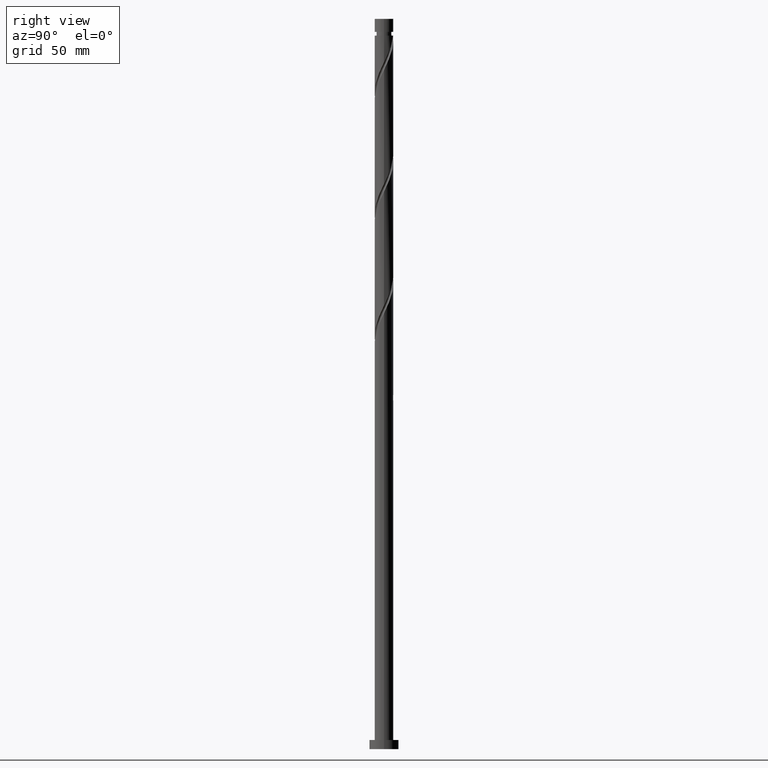
[diagram: clean part render]
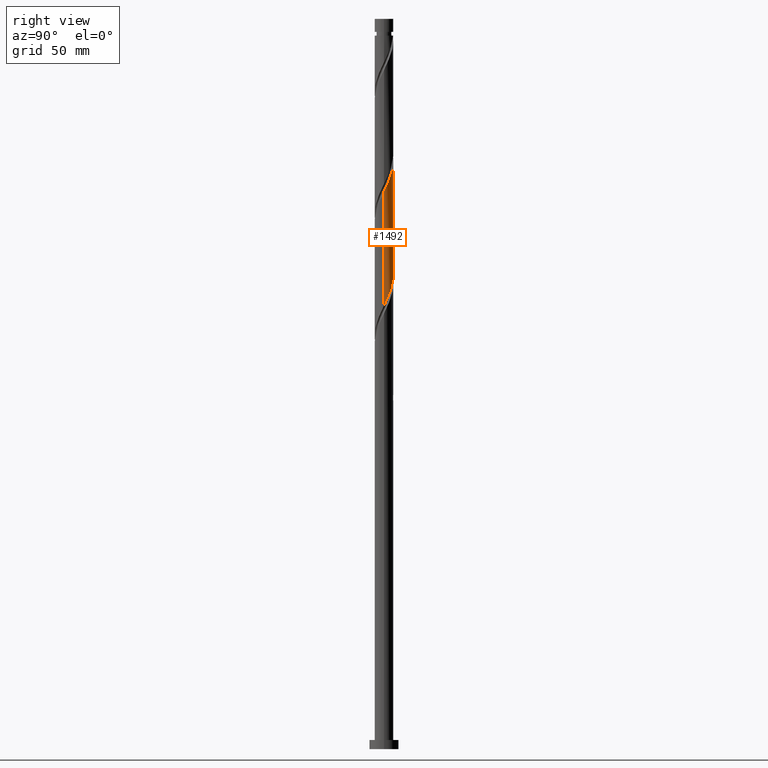
[diagram: same view with one face highlighted and labeled with its STEP entity id]
A machine part, right view. The second image highlights one B-rep face of the part: STEP entity #1492.
In plain terms, the highlighted cylindrical surface (edge-blend (fillet) strip) has radius 5.1 mm, axis along (-0, -0, -1).
Its self-contained STEP definition (entity closure, byte-faithful):
#24 = CARTESIAN_POINT ( 'NONE',  ( 4.703541288989204538, 2.043044105940176713, 309.7353195705192093 ) ) ;
#88 = CARTESIAN_POINT ( 'NONE',  ( -1.629005779183733349, 4.862475711757237917, 263.0686529038525237 ) ) ;
#108 = CARTESIAN_POINT ( 'NONE',  ( -4.864535835123824370, 1.531760787067010465, 273.0686529038525237 ) ) ;
#117 = CARTESIAN_POINT ( 'NONE',  ( -0.5824425476983379202, 5.094908296983734708, 260.8464306816302951 ) ) ;
#131 = CARTESIAN_POINT ( 'NONE',  ( -5.006116031791211007, 1.111814801253407703, 336.4019862371858949 ) ) ;
#154 = CARTESIAN_POINT ( 'NONE',  ( 3.465917878084602055, 3.779516257197030438, 314.1797640149634958 ) ) ;
#227 = FACE_OUTER_BOUND ( 'NONE', #809, .T. ) ;
#252 = ORIENTED_EDGE ( 'NONE', *, *, #808, .F. ) ;
#254 = CARTESIAN_POINT ( 'NONE',  ( 3.396524602074721511, 3.841998243563393700, 251.9575417927413525 ) ) ;
#273 = CARTESIAN_POINT ( 'NONE',  ( -5.100000000000005862, 0.2905660609768112579, 338.1153961287241145 ) ) ;
#281 = CARTESIAN_POINT ( 'NONE',  ( 5.099999999999997868, 0.2905660609768141445, 243.5774652345363620 ) ) ;
#304 = CARTESIAN_POINT ( 'NONE',  ( 5.076705030977439748, 0.4868942682435418723, 306.4019862371858380 ) ) ;
#324 = CARTESIAN_POINT ( 'NONE',  ( 2.116689710232775745, 4.640002658468502794, 317.5130973482969239 ) ) ;
#349 = LINE ( 'NONE', #1322, #1494 ) ;
#396 = CARTESIAN_POINT ( 'NONE',  ( -4.665561090286806767, 2.128349028905955009, 334.1797640149636663 ) ) ;
#407 = CARTESIAN_POINT ( 'NONE',  ( 5.006116031791203902, 1.111814801253401708, 245.2908751260747238 ) ) ;
#418 = CARTESIAN_POINT ( 'NONE',  ( 2.960015320744664447, 4.153108390224947044, 253.0686529038524384 ) ) ;
#431 = DIRECTION ( 'NONE',  ( -0.000000000000000000, -0.000000000000000000, -1.000000000000000000 ) ) ;
#461 = LINE ( 'NONE', #1080, #777 ) ;
#473 = CARTESIAN_POINT ( 'NONE',  ( 5.100000000000005862, 0.2440043963624370094, 305.8962026303395305 ) ) ;
#521 = CARTESIAN_POINT ( 'NONE',  ( -1.540198153706608508, 4.891331058450437475, 325.2908751260745817 ) ) ;
#546 = EDGE_CURVE ( 'NONE', #1191, #640, #349, .T. ) ;
#548 = CARTESIAN_POINT ( 'NONE',  ( -4.393329915788834583, 2.590106609974759611, 333.0686529038525237 ) ) ;
#557 = CARTESIAN_POINT ( 'NONE',  ( -5.100000000000000533, 0.2440043963624132228, 275.7966587329210597 ) ) ;
#579 = CARTESIAN_POINT ( 'NONE',  ( 1.014887185848757145, 4.997999999999998444, 257.5130973482969807 ) ) ;
#589 = CARTESIAN_POINT ( 'NONE',  ( -3.035145759683201661, 4.098522931188388618, 266.4019862371857243 ) ) ;
#613 = CARTESIAN_POINT ( 'NONE',  ( 4.439763080642553206, 2.509682009291898996, 310.8464306816301814 ) ) ;
#623 = CARTESIAN_POINT ( 'NONE',  ( 3.820951375190253962, 3.377918084920322972, 313.0686529038524100 ) ) ;
#634 = VERTEX_POINT ( 'NONE', #1500 ) ;
#640 = VERTEX_POINT ( 'NONE', #1029 ) ;
#647 = CARTESIAN_POINT ( 'NONE',  ( 0.5824425476983405847, 5.094908296983741813, 320.8464306816300677 ) ) ;
#681 = CARTESIAN_POINT ( 'NONE',  ( 0.04643316485371995483, 5.099788619266659495, 321.9575417927414378 ) ) ;
#690 = DIRECTION ( 'NONE',  ( -0.000000000000000000, -0.000000000000000000, -1.000000000000000000 ) ) ;
#698 = DIRECTION ( 'NONE',  ( -0.000000000000000000, -0.000000000000000000, -1.000000000000000000 ) ) ;
#702 = EDGE_CURVE ( 'NONE', #1590, #1191, #1675, .T. ) ;
#707 = CARTESIAN_POINT ( 'NONE',  ( -5.076705030977431754, 0.4868942682435466462, 275.2908751260746385 ) ) ;
#708 = CYLINDRICAL_SURFACE ( 'NONE', #911, 5.099999999999999645 ) ;
#717 = CARTESIAN_POINT ( 'NONE',  ( 4.665561090286798773, 2.128349028905950124, 247.5130973482968955 ) ) ;
#728 = CARTESIAN_POINT ( 'NONE',  ( 4.393329915788831030, 2.590106609974752061, 248.6242084594079813 ) ) ;
#773 = CARTESIAN_POINT ( 'NONE',  ( 3.035145759683209654, 4.098522931188393059, 315.2908751260747522 ) ) ;
#777 = VECTOR ( 'NONE', #431, 1000.000000000000000 ) ;
#808 = EDGE_CURVE ( 'NONE', #640, #634, #860, .T. ) ;
#809 = EDGE_LOOP ( 'NONE', ( #1179, #865, #252, #1610 ) ) ;
#853 = CARTESIAN_POINT ( 'NONE',  ( -2.031852096560607723, 4.677774797668473816, 326.4019862371857812 ) ) ;
#860 =( BOUNDED_CURVE ( )  B_SPLINE_CURVE ( 2, ( #1367, #557, #707, #892, #108, #1518, #1046, #1951, #1169, #1795, #589, #1214, #1017, #88, #1833, #117, #1057, #1816, #579, #1203, #1644, #1824, #418, #254, #873, #1496, #728, #717, #1337, #407, #1673, #281, #1026 ),
 .UNSPECIFIED., .F., .T. ) 
 B_SPLINE_CURVE_WITH_KNOTS ( ( 3, 2, 2, 2, 2, 2, 2, 2, 2, 2, 2, 2, 2, 2, 2, 2, 3 ),
 ( 0.6795286012773112949, 0.6833333333333333481, 0.6916666666666666519, 0.6999999999999999556, 0.7083333333333333703, 0.7166666666666666741, 0.7249999999999999778, 0.7333333333333332815, 0.7416666666666666963, 0.7500000000000000000, 0.7583333333333333037, 0.7666666666666667185, 0.7750000000000000222, 0.7833333333333333259, 0.7916666666666666297, 0.8000000000000000444, 0.8045286012773112949 ),
 .UNSPECIFIED. ) 
 CURVE ( )  GEOMETRIC_REPRESENTATION_ITEM ( )  RATIONAL_B_SPLINE_CURVE ( ( 0.9066196499552257038, 0.9068171577856383170, 0.9090909090909373713, 0.9041108139711856451, 0.9090909090909373713, 0.9041108139711856451, 0.9090909090909373713, 0.9041108139711856451, 0.9090909090909373713, 0.9041108139711856451, 0.9090909090909373713, 0.9041108139711856451, 0.9090909090909373713, 0.9041108139711856451, 0.9090909090909373713, 0.9041108139711856451, 0.9090909090909373713, 0.9041108139711856451, 0.9090909090909373713, 0.9041108139711856451, 0.9090909090909373713, 0.9041108139711856451, 0.9090909090909373713, 0.9041108139711856451, 0.9090909090909373713, 0.9041108139711856451, 0.9090909090909373713, 0.9041108139711856451, 0.9090909090909373713, 0.9041108139711856451, 0.9090909090909373713, 0.9063845652764845884, 0.9066196499552257038 ) ) 
 REPRESENTATION_ITEM ( '' )  );
#865 = ORIENTED_EDGE ( 'NONE', *, *, #1638, .T. ) ;
#873 = CARTESIAN_POINT ( 'NONE',  ( 3.758811671682789068, 3.446931217303476291, 250.8464306816302098 ) ) ;
#892 = CARTESIAN_POINT ( 'NONE',  ( -5.025530381258453971, 1.020477468193841331, 274.1797640149634958 ) ) ;
#911 = AXIS2_PLACEMENT_3D ( 'NONE', #1645, #698, #1170 ) ;
#929 = CARTESIAN_POINT ( 'NONE',  ( 4.864535835123834140, 1.531760787067008689, 308.6242084594079529 ) ) ;
#949 = CARTESIAN_POINT ( 'NONE',  ( 1.629005779183738900, 4.862475711757243246, 318.6242084594081234 ) ) ;
#993 = CARTESIAN_POINT ( 'NONE',  ( -3.396524602074724175, 3.841998243563401250, 329.7353195705190956 ) ) ;
#1017 = CARTESIAN_POINT ( 'NONE',  ( -2.116689710232770860, 4.640002658468493024, 264.1797640149634958 ) ) ;
#1026 = CARTESIAN_POINT ( 'NONE',  ( 5.099999999999997868, 4.828338180874867465E-15, 242.9718739251517832 ) ) ;
#1029 = CARTESIAN_POINT ( 'NONE',  ( -5.099999999999998757, -6.861322678085339471E-15, 276.3052072584850976 ) ) ;
#1037 = CARTESIAN_POINT ( 'NONE',  ( -4.835838561039007999, 1.620081915079681245, 335.2908751260746953 ) ) ;
#1046 = CARTESIAN_POINT ( 'NONE',  ( -4.439763080642544324, 2.509682009291896332, 270.8464306816302383 ) ) ;
#1057 = CARTESIAN_POINT ( 'NONE',  ( -0.04643316485371615926, 5.099788619266650613, 259.7353195705191524 ) ) ;
#1080 = CARTESIAN_POINT ( 'NONE',  ( 5.099999999999999645, 6.245698675651499853E-16, 400.0000000000000000 ) ) ;
#1140 = CARTESIAN_POINT ( 'NONE',  ( -2.523506039414606494, 4.464218536886509270, 327.5130973482969807 ) ) ;
#1151 = CARTESIAN_POINT ( 'NONE',  ( -4.121098741290862399, 3.051864191043564656, 331.9575417927413241 ) ) ;
#1169 = CARTESIAN_POINT ( 'NONE',  ( -3.820951375190243748, 3.377918084920320307, 268.6242084594080666 ) ) ;
#1170 = DIRECTION ( 'NONE',  ( -1.000000000000000000, 0.000000000000000000, 0.000000000000000000 ) ) ;
#1179 = ORIENTED_EDGE ( 'NONE', *, *, #702, .F. ) ;
#1180 = CARTESIAN_POINT ( 'NONE',  ( -5.100000000000006750, 5.934520922004056829E-15, 338.7209874381086365 ) ) ;
#1191 = VERTEX_POINT ( 'NONE', #1996 ) ;
#1203 = CARTESIAN_POINT ( 'NONE',  ( 1.540198153706610951, 4.891331058450429481, 256.4019862371857812 ) ) ;
#1214 = CARTESIAN_POINT ( 'NONE',  ( -2.604373641281807039, 4.417529605179753460, 265.2908751260746953 ) ) ;
#1234 = CARTESIAN_POINT ( 'NONE',  ( 5.025530381258461077, 1.020477468193841331, 307.5130973482969239 ) ) ;
#1247 = CARTESIAN_POINT ( 'NONE',  ( 2.604373641281815477, 4.417529605179756125, 316.4019862371857243 ) ) ;
#1296 = CARTESIAN_POINT ( 'NONE',  ( -0.4895762179909007306, 5.104668941549574512, 323.0686529038524668 ) ) ;
#1322 = CARTESIAN_POINT ( 'NONE',  ( -5.099999999999999645, 0.000000000000000000, 400.0000000000000000 ) ) ;
#1337 = CARTESIAN_POINT ( 'NONE',  ( 4.835838561039001782, 1.620081915079673474, 246.4019862371858096 ) ) ;
#1367 = CARTESIAN_POINT ( 'NONE',  ( -5.099999999999997868, -6.861322678085339471E-15, 276.3052072584850976 ) ) ;
#1407 = CARTESIAN_POINT ( 'NONE',  ( 4.175984872295901873, 2.976319912643616394, 311.9575417927413241 ) ) ;
#1428 = CARTESIAN_POINT ( 'NONE',  ( 5.100000000000006750, 3.213909315443002512E-15, 305.3876541047753790 ) ) ;
#1467 = CARTESIAN_POINT ( 'NONE',  ( -2.960015320744665335, 4.153108390224957702, 328.6242084594080666 ) ) ;
#1492 = ADVANCED_FACE ( 'NONE', ( #227 ), #708, .T. ) ;
#1494 = VECTOR ( 'NONE', #690, 1000.000000000000000 ) ;
#1496 = CARTESIAN_POINT ( 'NONE',  ( 4.121098741290859735, 3.051864191043555330, 249.7353195705191524 ) ) ;
#1500 = CARTESIAN_POINT ( 'NONE',  ( 5.099999999999998757, 4.828338180874868254E-15, 242.9718739251517832 ) ) ;
#1518 = CARTESIAN_POINT ( 'NONE',  ( -4.703541288989194769, 2.043044105940178934, 271.9575417927413241 ) ) ;
#1571 = CARTESIAN_POINT ( 'NONE',  ( 1.105724163441041963, 4.978692004370492086, 319.7353195705191524 ) ) ;
#1590 = VERTEX_POINT ( 'NONE', #1805 ) ;
#1610 = ORIENTED_EDGE ( 'NONE', *, *, #546, .F. ) ;
#1636 = CARTESIAN_POINT ( 'NONE',  ( -1.014887185848755369, 4.998000000000005549, 324.1797640149636663 ) ) ;
#1638 = EDGE_CURVE ( 'NONE', #1590, #634, #461, .T. ) ;
#1644 = CARTESIAN_POINT ( 'NONE',  ( 2.031852096560608167, 4.677774797668464046, 255.2908751260747238 ) ) ;
#1645 = CARTESIAN_POINT ( 'NONE',  ( 0.000000000000000000, 0.000000000000000000, 400.0000000000000000 ) ) ;
#1673 = CARTESIAN_POINT ( 'NONE',  ( 5.066997856243805387, 0.5792518664800757611, 244.1797640149635811 ) ) ;
#1675 =( BOUNDED_CURVE ( )  B_SPLINE_CURVE ( 2, ( #1428, #473, #304, #1234, #929, #24, #613, #1407, #623, #154, #773, #1247, #324, #949, #1571, #647, #681, #1296, #1636, #521, #853, #1140, #1467, #993, #1933, #1151, #548, #396, #1037, #131, #1804, #273, #1180 ),
 .UNSPECIFIED., .F., .T. ) 
 B_SPLINE_CURVE_WITH_KNOTS ( ( 3, 2, 2, 2, 2, 2, 2, 2, 2, 2, 2, 2, 2, 2, 2, 2, 3 ),
 ( 0.4295286012773117390, 0.4333333333333333481, 0.4416666666666666519, 0.4499999999999999556, 0.4583333333333333703, 0.4666666666666666741, 0.4749999999999999778, 0.4833333333333332815, 0.4916666666666666963, 0.5000000000000000000, 0.5083333333333333037, 0.5166666666666666075, 0.5250000000000000222, 0.5333333333333333259, 0.5416666666666667407, 0.5500000000000000444, 0.5545286012773114059 ),
 .UNSPECIFIED. ) 
 CURVE ( )  GEOMETRIC_REPRESENTATION_ITEM ( )  RATIONAL_B_SPLINE_CURVE ( ( 0.9066196499552316990, 0.9068171577856445342, 0.9090909090909433665, 0.9041108139711916403, 0.9090909090909433665, 0.9041108139711916403, 0.9090909090909433665, 0.9041108139711916403, 0.9090909090909433665, 0.9041108139711916403, 0.9090909090909433665, 0.9041108139711916403, 0.9090909090909433665, 0.9041108139711916403, 0.9090909090909433665, 0.9041108139711916403, 0.9090909090909433665, 0.9041108139711916403, 0.9090909090909433665, 0.9041108139711916403, 0.9090909090909433665, 0.9041108139711916403, 0.9090909090909433665, 0.9041108139711916403, 0.9090909090909433665, 0.9041108139711916403, 0.9090909090909433665, 0.9041108139711916403, 0.9090909090909433665, 0.9041108139711916403, 0.9090909090909433665, 0.9063845652764905836, 0.9066196499552316990 ) ) 
 REPRESENTATION_ITEM ( '' )  );
#1795 = CARTESIAN_POINT ( 'NONE',  ( -3.465917878084596282, 3.779516257197026441, 267.5130973482969239 ) ) ;
#1804 = CARTESIAN_POINT ( 'NONE',  ( -5.066997856243814269, 0.5792518664800785366, 337.5130973482968102 ) ) ;
#1805 = CARTESIAN_POINT ( 'NONE',  ( 5.100000000000006750, 3.213909315443002512E-15, 305.3876541047754358 ) ) ;
#1816 = CARTESIAN_POINT ( 'NONE',  ( 0.4895762179909050604, 5.104668941549566519, 258.6242084594079529 ) ) ;
#1824 = CARTESIAN_POINT ( 'NONE',  ( 2.523506039414604718, 4.464218536886502164, 254.1797640149635527 ) ) ;
#1833 = CARTESIAN_POINT ( 'NONE',  ( -1.105724163441035302, 4.978692004370486757, 261.9575417927413241 ) ) ;
#1933 = CARTESIAN_POINT ( 'NONE',  ( -3.758811671682795286, 3.446931217303482953, 330.8464306816303520 ) ) ;
#1951 = CARTESIAN_POINT ( 'NONE',  ( -4.175984872295893879, 2.976319912643616394, 269.7353195705191524 ) ) ;
#1996 = CARTESIAN_POINT ( 'NONE',  ( -5.100000000000006750, 5.934520922004056040E-15, 338.7209874381086934 ) ) ;